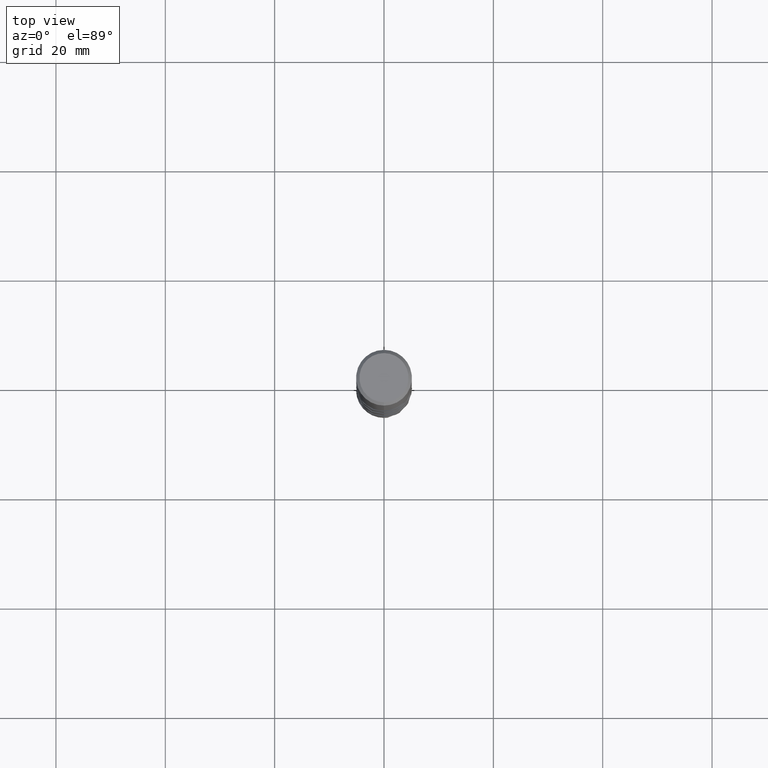
[diagram: clean part render]
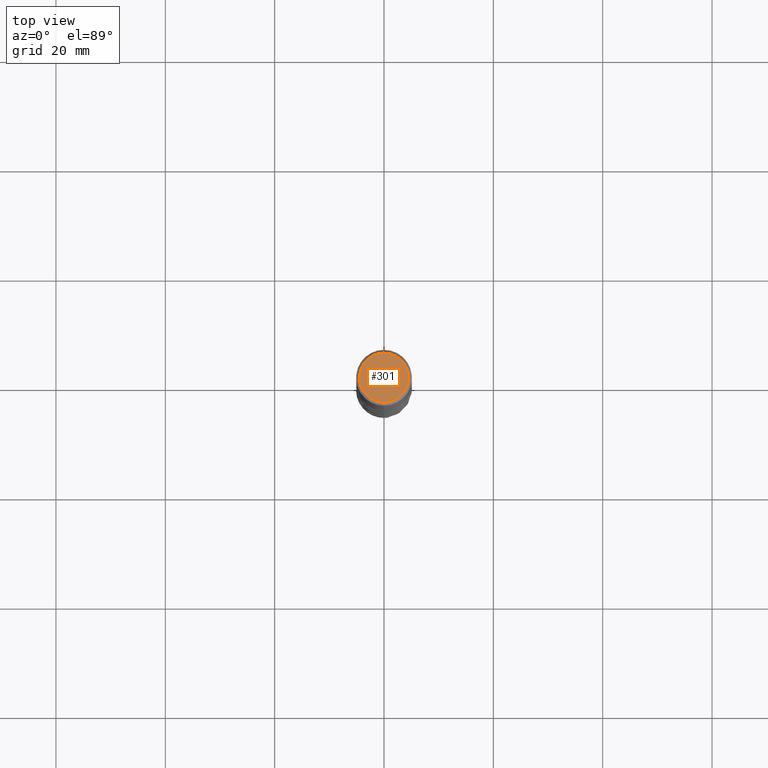
[diagram: same view with one face highlighted and labeled with its STEP entity id]
A machine part, top view. The second image highlights one B-rep face of the part: STEP entity #301.
In plain terms, the highlighted planar face has unit normal (-0, 0, 1).
Its self-contained STEP definition (entity closure, byte-faithful):
#283=EDGE_CURVE('',#395,#319,#783,.T.);
#301=ADVANCED_FACE('',(#802),#803,.T.);
#317=EDGE_CURVE('',#319,#395,#820,.T.);
#319=VERTEX_POINT('',#822);
#395=VERTEX_POINT('',#904);
#783=CIRCLE('',#1351,4.5);
#802=FACE_OUTER_BOUND('',#1409,.T.);
#803=PLANE('',#1410);
#820=CIRCLE('',#2561,4.5);
#822=CARTESIAN_POINT('',(5.5107285922007E-016,-4.5,0.0));
#904=CARTESIAN_POINT('',(0.0,4.5,0.0));
#1351=AXIS2_PLACEMENT_3D('',#7270,#7271,#7272);
#1409=EDGE_LOOP('',(#7287,#7288));
#1410=AXIS2_PLACEMENT_3D('',#7289,#7290,#7291);
#2561=AXIS2_PLACEMENT_3D('',#7305,#7306,#7307);
#7270=CARTESIAN_POINT('',(0.0,0.0,0.0));
#7271=DIRECTION('',(0.0,0.0,-1.0));
#7272=DIRECTION('',(0.0,1.0,0.0));
#7287=ORIENTED_EDGE('',*,*,#283,.F.);
#7288=ORIENTED_EDGE('',*,*,#317,.F.);
#7289=CARTESIAN_POINT('',(0.0,2.25,0.0));
#7290=DIRECTION('',(-0.0,0.0,1.0));
#7291=DIRECTION('',(0.0,-1.0,0.0));
#7305=CARTESIAN_POINT('',(0.0,0.0,0.0));
#7306=DIRECTION('',(0.0,0.0,-1.0));
#7307=DIRECTION('',(0.0,1.0,0.0));